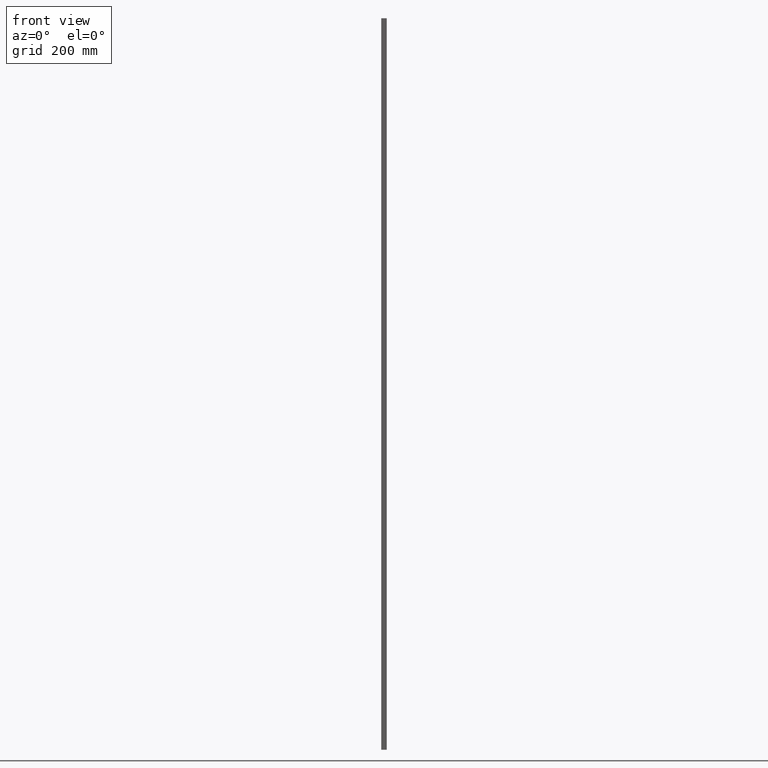
[diagram: clean part render]
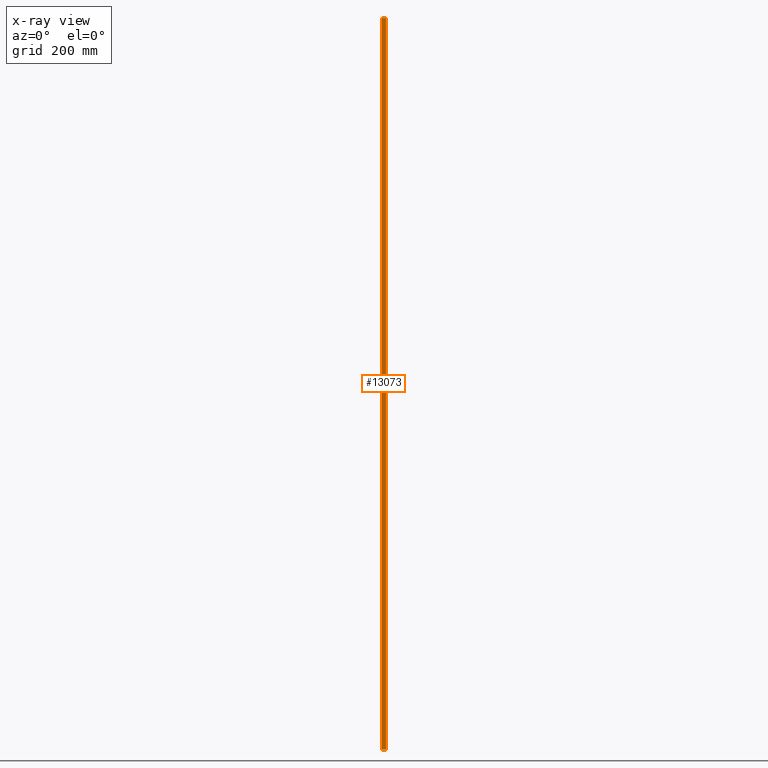
[diagram: x-ray — body ghosted, one internal face saturated and labeled with its STEP entity id]
A machine part, front view, then the same camera in x-ray: the body is ghosted and one INTERNAL B-rep face — a face not visible from any outside direction — is saturated and labeled: STEP entity #13073.
In plain terms, the highlighted planar face has unit normal (0, -1, 0).
Its self-contained STEP definition (entity closure, byte-faithful):
#1031 = ORIENTED_EDGE ( 'NONE', *, *, #2853, .F. ) ;
#1119 = VERTEX_POINT ( 'NONE', #4217 ) ;
#1703 = DIRECTION ( 'NONE',  ( 0.000000000000000000, -1.000000000000000000, 0.000000000000000000 ) ) ;
#2472 = VERTEX_POINT ( 'NONE', #11209 ) ;
#2853 = EDGE_CURVE ( 'NONE', #5697, #2472, #18079, .T. ) ;
#3276 = PLANE ( 'NONE',  #9979 ) ;
#4217 = CARTESIAN_POINT ( 'NONE',  ( 5.549999999999998934, 6.000000000000000000, -1000.000000000000000 ) ) ;
#4576 = CARTESIAN_POINT ( 'NONE',  ( 5.549999999999998934, 6.000000000000000000, 1000.000000000000000 ) ) ;
#4628 = EDGE_LOOP ( 'NONE', ( #12107, #1031, #14304, #7421 ) ) ;
#5376 = EDGE_CURVE ( 'NONE', #1119, #2472, #7690, .T. ) ;
#5697 = VERTEX_POINT ( 'NONE', #13117 ) ;
#6091 = CARTESIAN_POINT ( 'NONE',  ( -5.549999999999998934, 6.000000000000000000, 1000.000000000000000 ) ) ;
#7098 = CARTESIAN_POINT ( 'NONE',  ( -5.549999999999998934, 6.000000000000000000, 1000.000000000000000 ) ) ;
#7421 = ORIENTED_EDGE ( 'NONE', *, *, #9627, .T. ) ;
#7690 = LINE ( 'NONE', #12418, #8339 ) ;
#7769 = DIRECTION ( 'NONE',  ( -1.000000000000000000, -0.000000000000000000, -0.000000000000000000 ) ) ;
#8210 = DIRECTION ( 'NONE',  ( -0.000000000000000000, -0.000000000000000000, -1.000000000000000000 ) ) ;
#8237 = LINE ( 'NONE', #13595, #15947 ) ;
#8339 = VECTOR ( 'NONE', #7769, 1000.000000000000000 ) ;
#8612 = VECTOR ( 'NONE', #11305, 1000.000000000000000 ) ;
#9005 = EDGE_CURVE ( 'NONE', #9801, #5697, #8237, .T. ) ;
#9627 = EDGE_CURVE ( 'NONE', #9801, #1119, #11723, .T. ) ;
#9801 = VERTEX_POINT ( 'NONE', #4576 ) ;
#9979 = AXIS2_PLACEMENT_3D ( 'NONE', #6091, #1703, #13097 ) ;
#11036 = FACE_OUTER_BOUND ( 'NONE', #4628, .T. ) ;
#11209 = CARTESIAN_POINT ( 'NONE',  ( -5.549999999999998934, 6.000000000000000000, -1000.000000000000000 ) ) ;
#11305 = DIRECTION ( 'NONE',  ( -0.000000000000000000, -0.000000000000000000, -1.000000000000000000 ) ) ;
#11723 = LINE ( 'NONE', #13758, #17898 ) ;
#12107 = ORIENTED_EDGE ( 'NONE', *, *, #5376, .T. ) ;
#12418 = CARTESIAN_POINT ( 'NONE',  ( -5.549999999999998934, 6.000000000000000000, -1000.000000000000000 ) ) ;
#13073 = ADVANCED_FACE ( 'NONE', ( #11036 ), #3276, .F. ) ;
#13097 = DIRECTION ( 'NONE',  ( 0.000000000000000000, -0.000000000000000000, -1.000000000000000000 ) ) ;
#13117 = CARTESIAN_POINT ( 'NONE',  ( -5.549999999999998934, 6.000000000000000000, 1000.000000000000000 ) ) ;
#13595 = CARTESIAN_POINT ( 'NONE',  ( -5.549999999999998934, 6.000000000000000000, 1000.000000000000000 ) ) ;
#13758 = CARTESIAN_POINT ( 'NONE',  ( 5.549999999999998934, 6.000000000000000000, 1000.000000000000000 ) ) ;
#14304 = ORIENTED_EDGE ( 'NONE', *, *, #9005, .F. ) ;
#14734 = DIRECTION ( 'NONE',  ( -1.000000000000000000, -0.000000000000000000, -0.000000000000000000 ) ) ;
#15947 = VECTOR ( 'NONE', #14734, 1000.000000000000000 ) ;
#17898 = VECTOR ( 'NONE', #8210, 1000.000000000000000 ) ;
#18079 = LINE ( 'NONE', #7098, #8612 ) ;